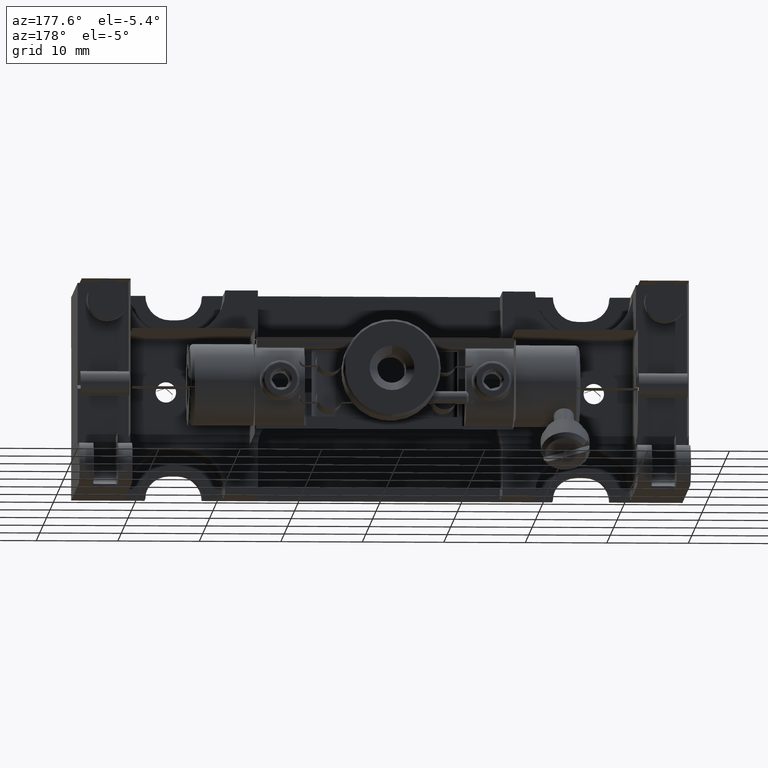
[diagram: clean part render]
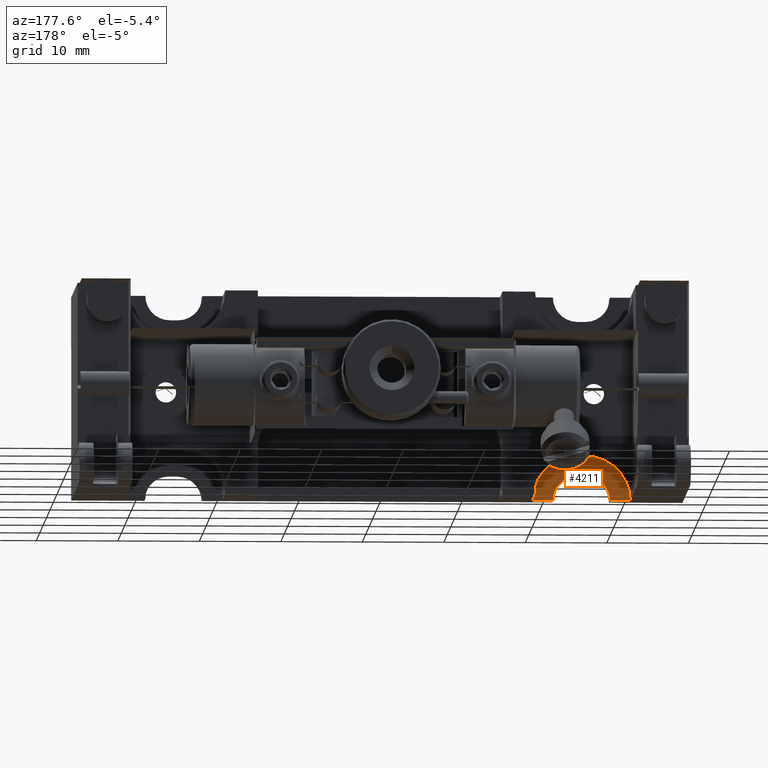
[diagram: same view with one face highlighted and labeled with its STEP entity id]
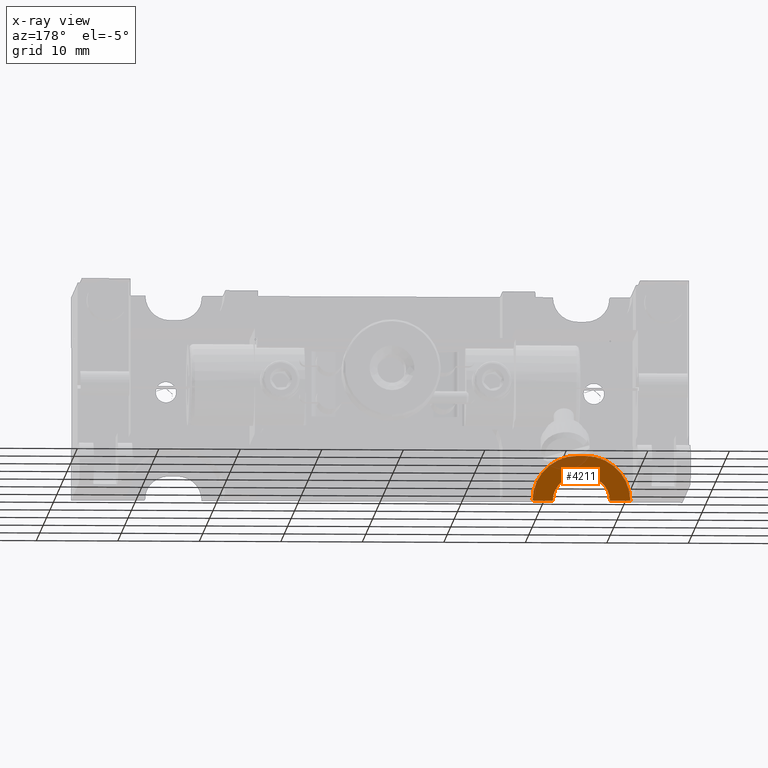
[diagram: x-ray of the same camera — body ghosted, the highlighted face saturated]
A machine part, auxiliary view. The second image highlights one B-rep face of the part: STEP entity #4211.
The next image is the same camera in x-ray: the body ghosted, the highlighted face saturated — about 14% of this face is hidden behind the body in this view.
In plain terms, the highlighted planar face has unit normal (0, -1, 0).
Its self-contained STEP definition (entity closure, byte-faithful):
#255 = DIRECTION ( 'NONE',  ( -0.000000000000000000, -1.000000000000000000, -0.000000000000000000 ) ) ;
#783 = EDGE_CURVE ( 'NONE', #11298, #13667, #13678, .T. ) ;
#895 = DIRECTION ( 'NONE',  ( 0.000000000000000000, -0.000000000000000000, -1.000000000000000000 ) ) ;
#961 = DIRECTION ( 'NONE',  ( 0.000000000000000000, 0.000000000000000000, 1.000000000000000000 ) ) ;
#978 = ORIENTED_EDGE ( 'NONE', *, *, #10823, .T. ) ;
#1063 = ORIENTED_EDGE ( 'NONE', *, *, #783, .F. ) ;
#1172 = CARTESIAN_POINT ( 'NONE',  ( -5.673654033717511425, 30.67343476192750629, 53.43264947075056170 ) ) ;
#1705 = VERTEX_POINT ( 'NONE', #17656 ) ;
#1726 = EDGE_CURVE ( 'NONE', #1705, #4400, #11399, .T. ) ;
#2229 = DIRECTION ( 'NONE',  ( -1.000000000000000000, -0.000000000000000000, 0.000000000000000000 ) ) ;
#2245 = VECTOR ( 'NONE', #11080, 1000.000000000000000 ) ;
#2379 = CIRCLE ( 'NONE', #12280, 5.500000000000005329 ) ;
#2400 = DIRECTION ( 'NONE',  ( -1.000000000000000000, -0.000000000000000000, 0.000000000000000000 ) ) ;
#2409 = ORIENTED_EDGE ( 'NONE', *, *, #14730, .T. ) ;
#2470 = AXIS2_PLACEMENT_3D ( 'NONE', #13645, #2978, #2779 ) ;
#2509 = DIRECTION ( 'NONE',  ( -1.000000000000000000, -0.000000000000000000, -0.000000000000000000 ) ) ;
#2553 = DIRECTION ( 'NONE',  ( 0.000000000000000000, -1.000000000000000000, 0.000000000000000000 ) ) ;
#2779 = DIRECTION ( 'NONE',  ( 0.000000000000000000, 0.000000000000000000, 1.000000000000000000 ) ) ;
#2978 = DIRECTION ( 'NONE',  ( -0.000000000000000000, -1.000000000000000000, -0.000000000000000000 ) ) ;
#3449 = ORIENTED_EDGE ( 'NONE', *, *, #5215, .F. ) ;
#4211 = ADVANCED_FACE ( 'NONE', ( #15089 ), #20027, .F. ) ;
#4334 = CARTESIAN_POINT ( 'NONE',  ( 0.8263459662824945706, 30.67343476192750629, 53.43264947075055460 ) ) ;
#4400 = VERTEX_POINT ( 'NONE', #15805 ) ;
#5215 = EDGE_CURVE ( 'NONE', #1705, #10647, #8099, .T. ) ;
#5422 = CARTESIAN_POINT ( 'NONE',  ( -5.673654033717511425, 30.67343476192750629, 58.93264947075056881 ) ) ;
#5708 = ORIENTED_EDGE ( 'NONE', *, *, #9483, .T. ) ;
#5995 = CARTESIAN_POINT ( 'NONE',  ( -4.673654033717510536, 30.67343476192750629, 58.93264947075056881 ) ) ;
#6046 = VECTOR ( 'NONE', #2400, 1000.000000000000000 ) ;
#6662 = DIRECTION ( 'NONE',  ( 0.000000000000000000, 0.000000000000000000, 1.000000000000000000 ) ) ;
#6732 = CIRCLE ( 'NONE', #9684, 5.500000000000005329 ) ;
#7474 = VECTOR ( 'NONE', #2509, 1000.000000000000000 ) ;
#8099 = LINE ( 'NONE', #17297, #2245 ) ;
#8321 = CARTESIAN_POINT ( 'NONE',  ( -4.673654033717510536, 30.67343476192750629, 53.43264947075056170 ) ) ;
#8357 = EDGE_CURVE ( 'NONE', #13196, #19191, #13681, .T. ) ;
#8383 = AXIS2_PLACEMENT_3D ( 'NONE', #8321, #255, #12976 ) ;
#8950 = CARTESIAN_POINT ( 'NONE',  ( -17.67365403371751498, 30.67343476192750629, 53.43264947075055460 ) ) ;
#9075 = CARTESIAN_POINT ( 'NONE',  ( -11.17365403371751675, 30.67343476192750629, 53.43264947075055460 ) ) ;
#9154 = CARTESIAN_POINT ( 'NONE',  ( -1.673654033717508094, 30.67343476192750629, 53.43264947075055460 ) ) ;
#9483 = EDGE_CURVE ( 'NONE', #19191, #10647, #16635, .T. ) ;
#9527 = ORIENTED_EDGE ( 'NONE', *, *, #12801, .T. ) ;
#9684 = AXIS2_PLACEMENT_3D ( 'NONE', #1172, #15059, #961 ) ;
#9872 = ORIENTED_EDGE ( 'NONE', *, *, #8357, .T. ) ;
#10608 = CARTESIAN_POINT ( 'NONE',  ( -5.673654033717511425, 30.67343476192750629, 53.43264947075056170 ) ) ;
#10647 = VERTEX_POINT ( 'NONE', #13791 ) ;
#10823 = EDGE_CURVE ( 'NONE', #11298, #13196, #2379, .T. ) ;
#11080 = DIRECTION ( 'NONE',  ( 1.000000000000000000, 0.000000000000000000, 0.000000000000000000 ) ) ;
#11277 = VECTOR ( 'NONE', #2229, 1000.000000000000000 ) ;
#11298 = VERTEX_POINT ( 'NONE', #5995 ) ;
#11399 = CIRCLE ( 'NONE', #2470, 3.000000000000002665 ) ;
#12220 = CARTESIAN_POINT ( 'NONE',  ( -5.673654033717511425, 30.67343476192750629, 58.93264947075056881 ) ) ;
#12280 = AXIS2_PLACEMENT_3D ( 'NONE', #15772, #14534, #6662 ) ;
#12801 = EDGE_CURVE ( 'NONE', #13444, #13667, #6732, .T. ) ;
#12976 = DIRECTION ( 'NONE',  ( -8.673617379884027583E-16, 0.000000000000000000, 1.000000000000000000 ) ) ;
#13196 = VERTEX_POINT ( 'NONE', #4334 ) ;
#13444 = VERTEX_POINT ( 'NONE', #9075 ) ;
#13645 = CARTESIAN_POINT ( 'NONE',  ( -5.673654033717511425, 30.67343476192750629, 53.43264947075056170 ) ) ;
#13667 = VERTEX_POINT ( 'NONE', #12220 ) ;
#13678 = LINE ( 'NONE', #5422, #7474 ) ;
#13681 = LINE ( 'NONE', #18128, #6046 ) ;
#13791 = CARTESIAN_POINT ( 'NONE',  ( -4.673654033717510536, 30.67343476192750629, 56.43264947075056170 ) ) ;
#14534 = DIRECTION ( 'NONE',  ( 0.000000000000000000, 1.000000000000000000, 0.000000000000000000 ) ) ;
#14730 = EDGE_CURVE ( 'NONE', #4400, #13444, #19906, .T. ) ;
#14990 = EDGE_LOOP ( 'NONE', ( #1063, #978, #9872, #5708, #3449, #20008, #2409, #9527 ) ) ;
#15059 = DIRECTION ( 'NONE',  ( 0.000000000000000000, 1.000000000000000000, 0.000000000000000000 ) ) ;
#15089 = FACE_OUTER_BOUND ( 'NONE', #14990, .T. ) ;
#15686 = AXIS2_PLACEMENT_3D ( 'NONE', #10608, #2553, #895 ) ;
#15772 = CARTESIAN_POINT ( 'NONE',  ( -4.673654033717510536, 30.67343476192750629, 53.43264947075056170 ) ) ;
#15805 = CARTESIAN_POINT ( 'NONE',  ( -8.673654033717514977, 30.67343476192750629, 53.43264947075055460 ) ) ;
#16635 = CIRCLE ( 'NONE', #8383, 3.000000000000002665 ) ;
#17297 = CARTESIAN_POINT ( 'NONE',  ( -5.673654033717511425, 30.67343476192750629, 56.43264947075056170 ) ) ;
#17656 = CARTESIAN_POINT ( 'NONE',  ( -5.673654033717511425, 30.67343476192750629, 56.43264947075056170 ) ) ;
#18128 = CARTESIAN_POINT ( 'NONE',  ( -17.67365403371751498, 30.67343476192750629, 53.43264947075055460 ) ) ;
#19191 = VERTEX_POINT ( 'NONE', #9154 ) ;
#19906 = LINE ( 'NONE', #8950, #11277 ) ;
#20008 = ORIENTED_EDGE ( 'NONE', *, *, #1726, .T. ) ;
#20027 = PLANE ( 'NONE',  #15686 ) ;